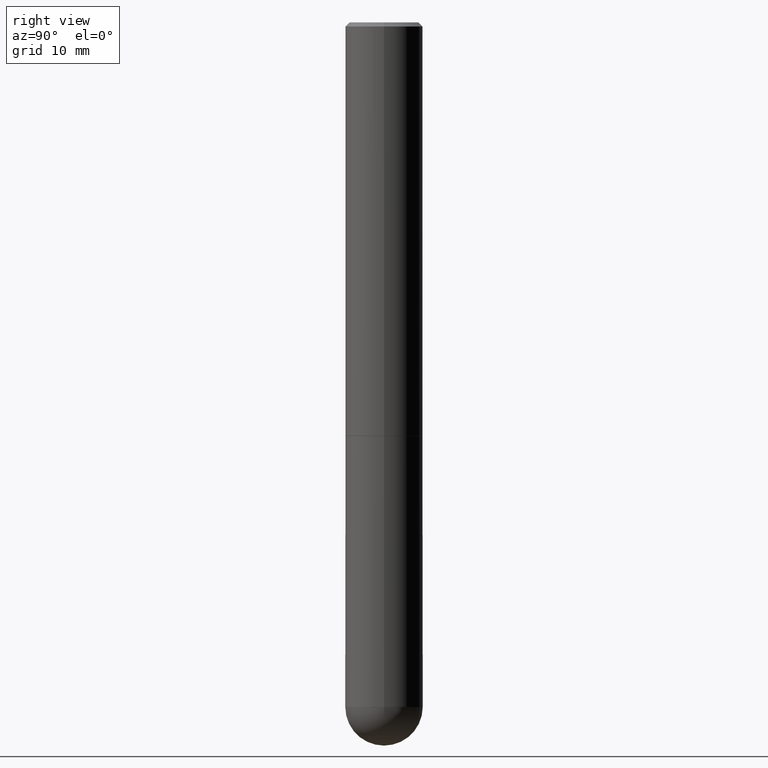
[diagram: clean part render]
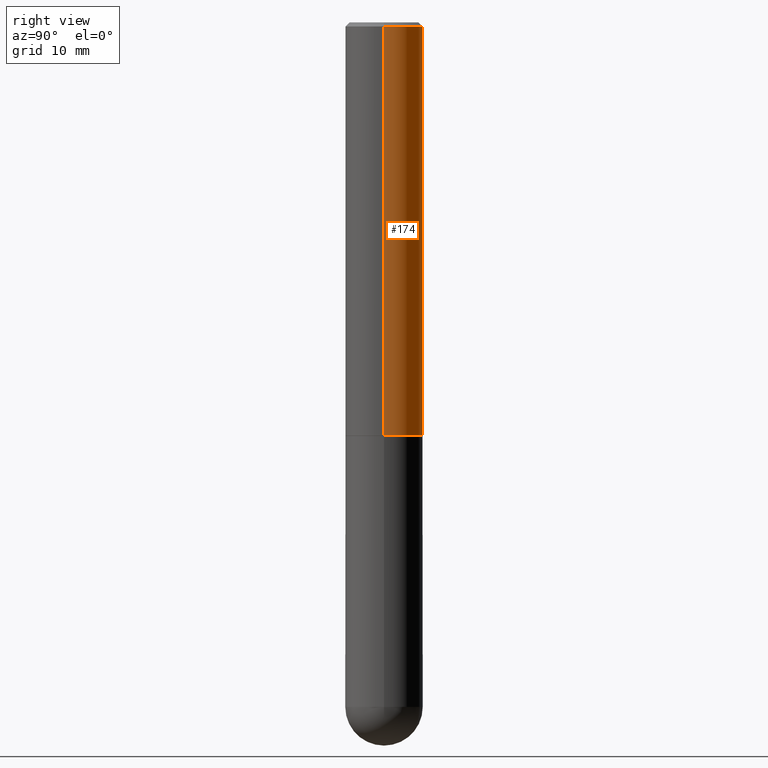
[diagram: same view with one face highlighted and labeled with its STEP entity id]
A machine part, right view. The second image highlights one B-rep face of the part: STEP entity #174.
In plain terms, the highlighted cylindrical surface (partial cylindrical patch) has radius 4.7625 mm, axis along (-0, 0, 1).
Its self-contained STEP definition (entity closure, byte-faithful):
#19 = CIRCLE ( 'NONE', #130, 0.1875000000000002776 ) ;
#29 = CARTESIAN_POINT ( 'NONE',  ( 4.890937612370282792E-31, -6.982962677686303935E-17, -0.02000000000000003858 ) ) ;
#33 = DIRECTION ( 'NONE',  ( -2.445468806185136877E-29, 3.491481338843145188E-15, 1.000000000000000000 ) ) ;
#40 = VERTEX_POINT ( 'NONE', #276 ) ;
#43 = VECTOR ( 'NONE', #33, 39.37007874015748143 ) ;
#54 = VECTOR ( 'NONE', #378, 39.37007874015748143 ) ;
#60 = ORIENTED_EDGE ( 'NONE', *, *, #159, .F. ) ;
#61 = CARTESIAN_POINT ( 'NONE',  ( -0.1875000000000001110, 1.332267629550188637E-15, -9.223003294227953596E-30 ) ) ;
#85 = DIRECTION ( 'NONE',  ( -2.445468806185136597E-29, 3.491481338843145583E-15, 1.000000000000000000 ) ) ;
#92 = CARTESIAN_POINT ( 'NONE',  ( 4.888492143564087030E-29, -6.979471196347446580E-15, -1.998999999999999666 ) ) ;
#93 = AXIS2_PLACEMENT_3D ( 'NONE', #29, #85, #319 ) ;
#95 = ORIENTED_EDGE ( 'NONE', *, *, #294, .T. ) ;
#97 = LINE ( 'NONE', #198, #54 ) ;
#121 = DIRECTION ( 'NONE',  ( -2.445468806185136597E-29, 3.491481338843145583E-15, 1.000000000000000000 ) ) ;
#130 = AXIS2_PLACEMENT_3D ( 'NONE', #92, #121, #131 ) ;
#131 = DIRECTION ( 'NONE',  ( 1.000000000000000000, -6.982962677686268288E-15, 0.000000000000000000 ) ) ;
#156 = CARTESIAN_POINT ( 'NONE',  ( 0.000000000000000000, 0.000000000000000000, 0.000000000000000000 ) ) ;
#159 = EDGE_CURVE ( 'NONE', #40, #353, #314, .T. ) ;
#162 = LINE ( 'NONE', #61, #43 ) ;
#174 = ADVANCED_FACE ( 'NONE', ( #284 ), #257, .T. ) ;
#198 = CARTESIAN_POINT ( 'NONE',  ( 0.1875000000000001110, -1.309305502066175797E-15, 9.142831454617385217E-30 ) ) ;
#229 = ORIENTED_EDGE ( 'NONE', *, *, #375, .T. ) ;
#233 = EDGE_LOOP ( 'NONE', ( #229, #95, #60, #248 ) ) ;
#248 = ORIENTED_EDGE ( 'NONE', *, *, #367, .F. ) ;
#257 = CYLINDRICAL_SURFACE ( 'NONE', #261, 0.1875000000000001110 ) ;
#261 = AXIS2_PLACEMENT_3D ( 'NONE', #156, #372, #345 ) ;
#276 = CARTESIAN_POINT ( 'NONE',  ( 0.1874999999999999722, -1.356173001359025269E-15, -0.02000000000000003858 ) ) ;
#284 = FACE_OUTER_BOUND ( 'NONE', #233, .T. ) ;
#294 = EDGE_CURVE ( 'NONE', #298, #353, #162, .T. ) ;
#296 = CARTESIAN_POINT ( 'NONE',  ( -0.1875000000000002776, -2.192382782011961963E-15, -1.998999999999999666 ) ) ;
#298 = VERTEX_POINT ( 'NONE', #296 ) ;
#314 = CIRCLE ( 'NONE', #93, 0.1874999999999999722 ) ;
#319 = DIRECTION ( 'NONE',  ( 1.000000000000000000, -6.982962677686266711E-15, 0.000000000000000000 ) ) ;
#324 = VERTEX_POINT ( 'NONE', #410 ) ;
#345 = DIRECTION ( 'NONE',  ( 1.000000000000000000, -6.982962677686266711E-15, 4.876176775795935793E-29 ) ) ;
#353 = VERTEX_POINT ( 'NONE', #406 ) ;
#367 = EDGE_CURVE ( 'NONE', #324, #40, #97, .T. ) ;
#372 = DIRECTION ( 'NONE',  ( -2.445468806185136597E-29, 3.491481338843145583E-15, 1.000000000000000000 ) ) ;
#375 = EDGE_CURVE ( 'NONE', #324, #298, #19, .T. ) ;
#378 = DIRECTION ( 'NONE',  ( -2.445468806185136877E-29, 3.491481338843145188E-15, 1.000000000000000000 ) ) ;
#406 = CARTESIAN_POINT ( 'NONE',  ( -0.1874999999999999722, 1.239475875289311710E-15, -0.02000000000000003858 ) ) ;
#410 = CARTESIAN_POINT ( 'NONE',  ( 0.1875000000000002776, -8.288776698413623955E-15, -1.998999999999999666 ) ) ;